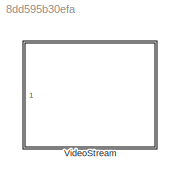
MODEL slx_8dd595b30efa
KIND library
CONFIG AbsTol = auto
CONFIG EnableMultiTasking = off
CONFIG FixedStep = auto
CONFIG MaxStep = auto
CONFIG MinStep = auto
CONFIG RelTol = 1e-3
CONFIG SampleTimeConstraint = Unconstrained
CONFIG Solver = VariableStepAuto
CONFIG SolverName = VariableStepAuto
CONFIG StartTime = 0.0
CONFIG StopTime = 10.0
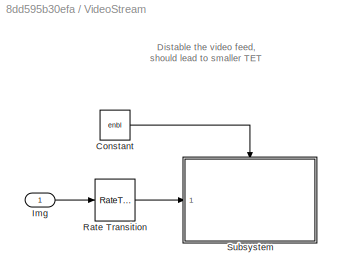
BLOCK [SubSystem] VideoStream
  Ports = [1]
  RequestExecContextInheritance = off
  TreatAsAtomicUnit = on
BLOCK [Constant] VideoStream/Constant
  Value = enbl
BLOCK [Inport] VideoStream/Img
  IconDisplay = Port number
BLOCK [RateTransition] VideoStream/Rate Transition
  Deterministic = off
  OutPortSampleTime = 0.05
  OutPortSampleTimeMultiple = decimationFactor
  OutPortSampleTimeOpt = Multiple of input port sample time
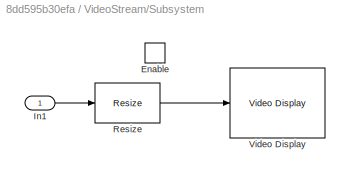
BLOCK [SubSystem] VideoStream/Subsystem
  Ports = [1, 0, 1]
  RequestExecContextInheritance = off
BLOCK [EnablePort] VideoStream/Subsystem/Enable
  Ports = []
BLOCK [Inport] VideoStream/Subsystem/In1
  IconDisplay = Port number
BLOCK [Reference] VideoStream/Subsystem/Resize  REF=visiongeotforms/Resize
  Ports = [1, 1]
  SourceBlock = visiongeotforms/Resize
  SourceProductBaseCode = VP
  SourceProductName = Computer Vision System Toolbox
  SourceType = Resize
BLOCK [Reference] VideoStream/Subsystem/Video Display  REF=xpcvideoutillib/Video Display
  Ports = [1]
  SourceBlock = xpcvideoutillib/Video Display
  SourceProductBaseCode = XP
  SourceProductName = Simulink Real-Time
  SourceType = Simulink Real-Time Video Display
ANNOTATION VideoStream: Distable the video feed, should lead to smaller TET
LINE VideoStream/Constant:1 -> VideoStream/Subsystem:enable
LINE VideoStream/Img:1 -> VideoStream/Rate Transition:1
LINE VideoStream/Rate Transition:1 -> VideoStream/Subsystem:1
LINE VideoStream/Subsystem/In1:1 -> VideoStream/Subsystem/Resize:1
LINE VideoStream/Subsystem/Resize:1 -> VideoStream/Subsystem/Video Display:1
